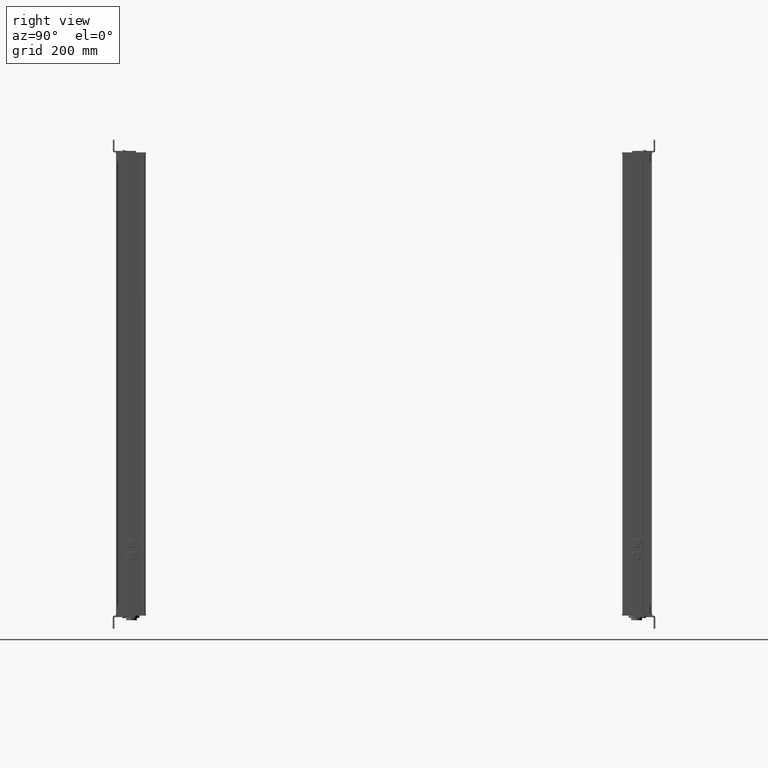
[diagram: clean part render]
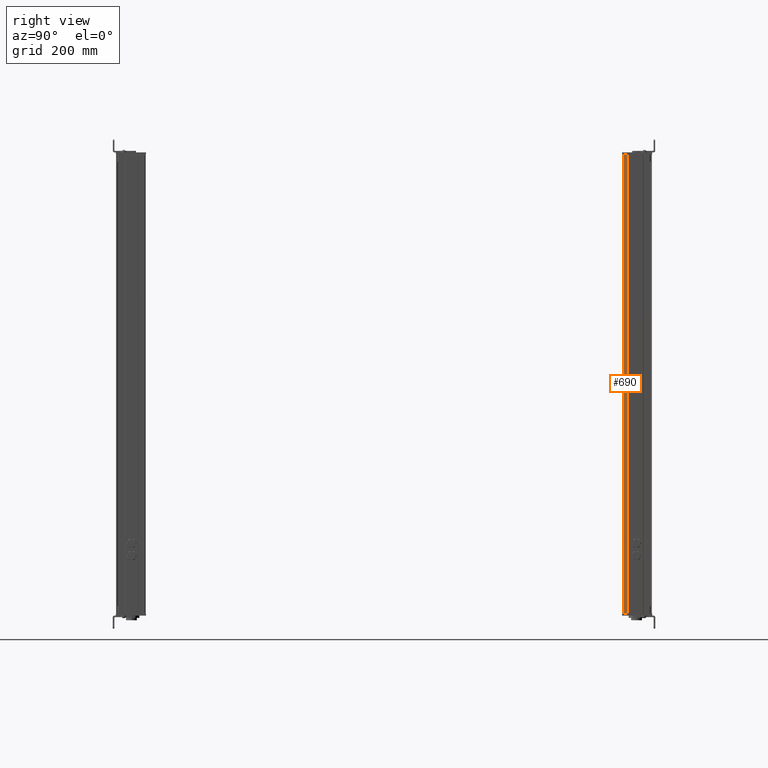
[diagram: same view with one face highlighted and labeled with its STEP entity id]
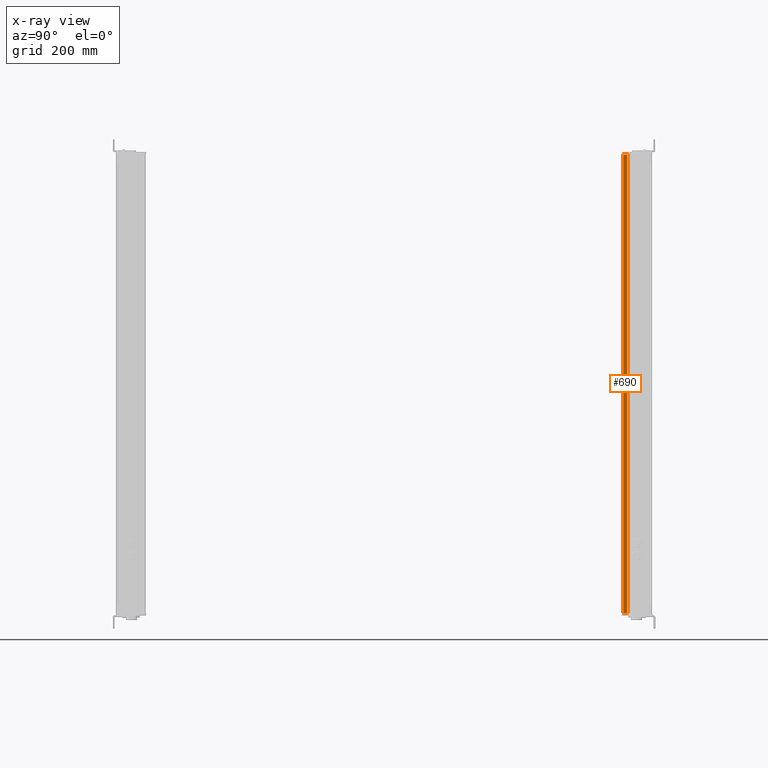
[diagram: x-ray of the same camera — body ghosted, the highlighted face saturated]
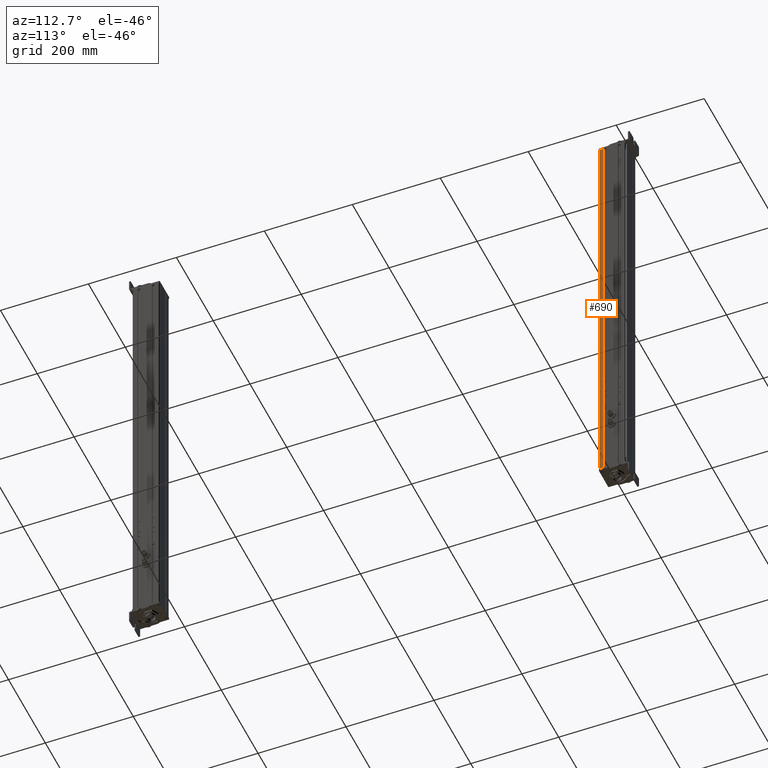
[diagram: same view with one face highlighted and labeled with its STEP entity id]
A machine part, right view. The second image highlights one B-rep face of the part: STEP entity #690.
The next image is the same camera in x-ray: the body ghosted, the highlighted face saturated — about 0% of this face is hidden behind the body in this view.
A second angle (auxiliary view) of the same face is appended — the face is thin or edge-on in the first view.
In plain terms, the highlighted planar face has unit normal (1, 0, 0).
Its self-contained STEP definition (entity closure, byte-faithful):
#638=CARTESIAN_POINT('Vertex',(613.195548938,180.060203323,0.)) ;
#641=CARTESIAN_POINT('Line Origine',(613.195548938,180.060203323,481.)) ;
#645=CARTESIAN_POINT('Vertex',(613.195548938,180.060203323,962.)) ;
#660=CARTESIAN_POINT('Axis2P3D Location',(613.195548937,133.067790275,0.)) ;
#665=CARTESIAN_POINT('Line Origine',(613.195548937,175.885298663,0.)) ;
#669=CARTESIAN_POINT('Vertex',(613.195548937,171.710394004,0.)) ;
#672=CARTESIAN_POINT('Line Origine',(613.195548937,171.710394004,481.)) ;
#676=CARTESIAN_POINT('Vertex',(613.195548937,171.710394004,962.)) ;
#679=CARTESIAN_POINT('Line Origine',(613.195548937,175.885298663,962.)) ;
#642=DIRECTION('Vector Direction',(0.,0.,1.)) ;
#661=DIRECTION('Axis2P3D Direction',(-1.,0.,0.)) ;
#662=DIRECTION('Axis2P3D XDirection',(0.,-1.,0.)) ;
#666=DIRECTION('Vector Direction',(0.,-1.,0.)) ;
#673=DIRECTION('Vector Direction',(0.,0.,1.)) ;
#680=DIRECTION('Vector Direction',(0.,-1.,0.)) ;
#663=AXIS2_PLACEMENT_3D('Plane Axis2P3D',#660,#661,#662) ;
#685=ORIENTED_EDGE('',*,*,#647,.F.) ;
#686=ORIENTED_EDGE('',*,*,#671,.T.) ;
#687=ORIENTED_EDGE('',*,*,#678,.T.) ;
#688=ORIENTED_EDGE('',*,*,#683,.F.) ;
#643=VECTOR('Line Direction',#642,1.) ;
#667=VECTOR('Line Direction',#666,1.) ;
#674=VECTOR('Line Direction',#673,1.) ;
#681=VECTOR('Line Direction',#680,1.) ;
#690=ADVANCED_FACE('Body.2',(#689),#664,.T.) ;
#647=EDGE_CURVE('',#639,#646,#644,.T.) ;
#671=EDGE_CURVE('',#639,#670,#668,.T.) ;
#678=EDGE_CURVE('',#670,#677,#675,.T.) ;
#683=EDGE_CURVE('',#646,#677,#682,.T.) ;
#684=EDGE_LOOP('',(#685,#686,#687,#688)) ;
#689=FACE_OUTER_BOUND('',#684,.T.) ;
#644=LINE('Line',#641,#643) ;
#668=LINE('Line',#665,#667) ;
#675=LINE('Line',#672,#674) ;
#682=LINE('Line',#679,#681) ;
#664=PLANE('Plane',#663) ;
#639=VERTEX_POINT('',#638) ;
#646=VERTEX_POINT('',#645) ;
#670=VERTEX_POINT('',#669) ;
#677=VERTEX_POINT('',#676) ;